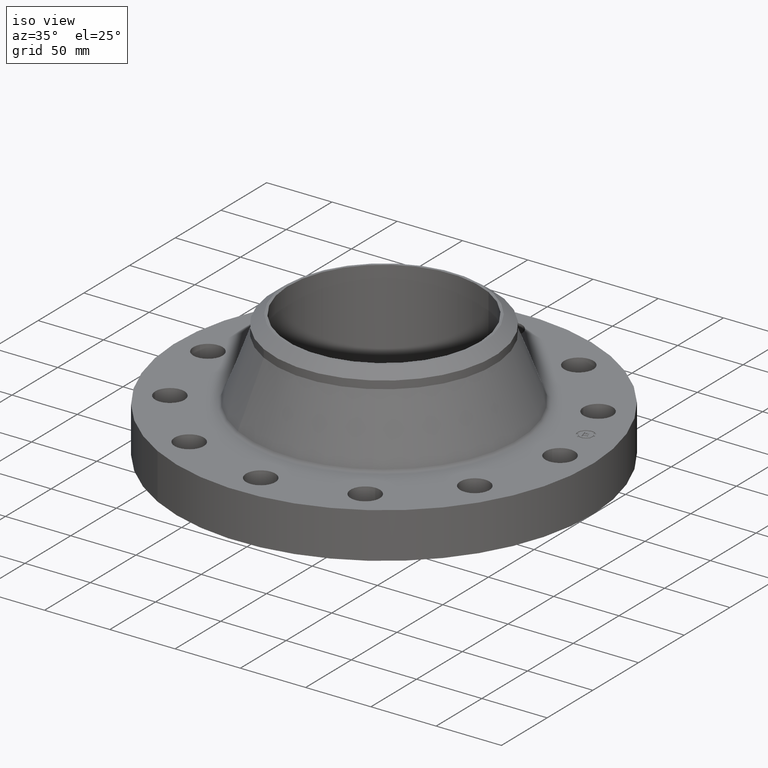
[diagram: clean part render]
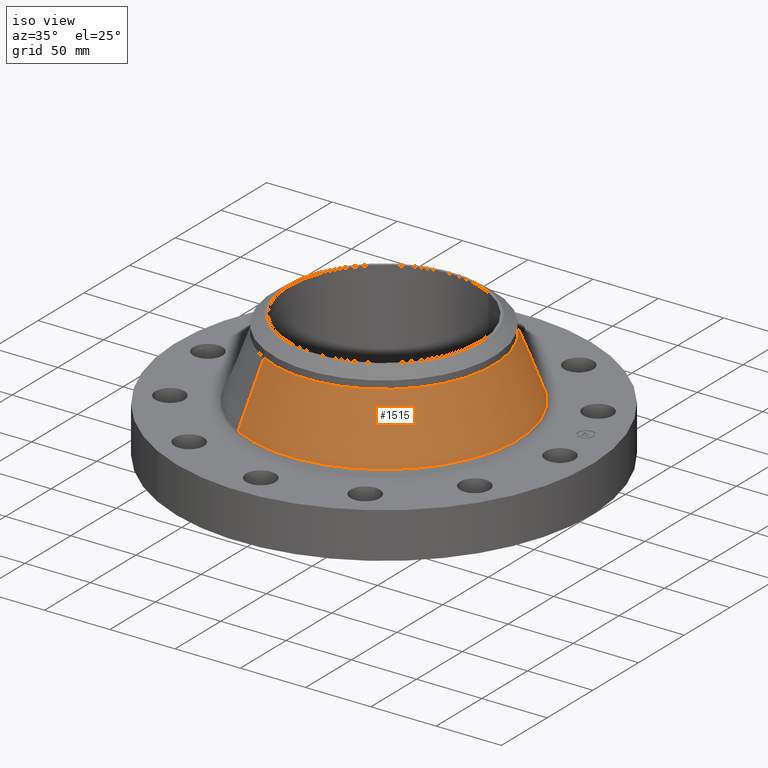
[diagram: same view with one face highlighted and labeled with its STEP entity id]
A machine part, iso view. The second image highlights one B-rep face of the part: STEP entity #1515.
In plain terms, the highlighted conical surface has half-angle 21.099 deg.
Its self-contained STEP definition (entity closure, byte-faithful):
#1307=AXIS2_PLACEMENT_3D('Circle Axis2P3D',#1305,#1306,$) ;
#1502=AXIS2_PLACEMENT_3D('Cone Axis2P3D',#1499,#1500,#1501) ;
#1506=AXIS2_PLACEMENT_3D('Circle Axis2P3D',#1504,#1505,$) ;
#1271=CARTESIAN_POINT('Vertex',(-1.93226031699,-3.53697878539,1.45680199496)) ;
#1278=CARTESIAN_POINT('Vertex',(1.93226031699,3.53697878539,1.45680199496)) ;
#1305=CARTESIAN_POINT('Axis2P3D Location',(0.,0.,1.45680199496)) ;
#1466=CARTESIAN_POINT('Line Origine',(-1.76077798873,-3.22308248903,2.38379869706)) ;
#1470=CARTESIAN_POINT('Vertex',(-1.58929566048,-2.90918619268,3.31079539917)) ;
#1477=CARTESIAN_POINT('Vertex',(1.58929566048,2.90918619268,3.31079539917)) ;
#1480=CARTESIAN_POINT('Line Origine',(1.76077798873,3.22308248903,2.38379869706)) ;
#1499=CARTESIAN_POINT('Axis2P3D Location',(0.,0.,3.31079539917)) ;
#1504=CARTESIAN_POINT('Axis2P3D Location',(0.,0.,3.31079539917)) ;
#1306=DIRECTION('Axis2P3D Direction',(-0.,0.,-0.0393700787402)) ;
#1467=DIRECTION('Vector Direction',(-0.00679469384318,-0.0124376036527,-0.0367306581885)) ;
#1481=DIRECTION('Vector Direction',(0.00679469384318,0.0124376036527,-0.0367306581885)) ;
#1500=DIRECTION('Axis2P3D Direction',(0.,0.,-0.0393700787402)) ;
#1501=DIRECTION('Axis2P3D XDirection',(0.0188750212049,0.0345504945626,0.)) ;
#1505=DIRECTION('Axis2P3D Direction',(-0.,0.,-0.0393700787402)) ;
#1468=VECTOR('Line Direction',#1467,0.0393700787402) ;
#1482=VECTOR('Line Direction',#1481,0.0393700787402) ;
#1510=ORIENTED_EDGE('',*,*,#1309,.F.) ;
#1511=ORIENTED_EDGE('',*,*,#1484,.T.) ;
#1512=ORIENTED_EDGE('',*,*,#1508,.T.) ;
#1513=ORIENTED_EDGE('',*,*,#1472,.F.) ;
#1515=ADVANCED_FACE('PartBody',(#1514),#1503,.T.) ;
#1308=CIRCLE('generated circle',#1307,4.03036584703) ;
#1507=CIRCLE('generated circle',#1506,3.31500000001) ;
#1503=CONICAL_SURFACE('Cone',#1502,3.31500000001,0.3682500741) ;
#1309=EDGE_CURVE('',#1279,#1272,#1308,.T.) ;
#1472=EDGE_CURVE('',#1272,#1471,#1469,.F.) ;
#1484=EDGE_CURVE('',#1279,#1478,#1483,.F.) ;
#1508=EDGE_CURVE('',#1478,#1471,#1507,.T.) ;
#1509=EDGE_LOOP('',(#1510,#1511,#1512,#1513)) ;
#1514=FACE_OUTER_BOUND('',#1509,.T.) ;
#1469=LINE('Line',#1466,#1468) ;
#1483=LINE('Line',#1480,#1482) ;
#1272=VERTEX_POINT('',#1271) ;
#1279=VERTEX_POINT('',#1278) ;
#1471=VERTEX_POINT('',#1470) ;
#1478=VERTEX_POINT('',#1477) ;